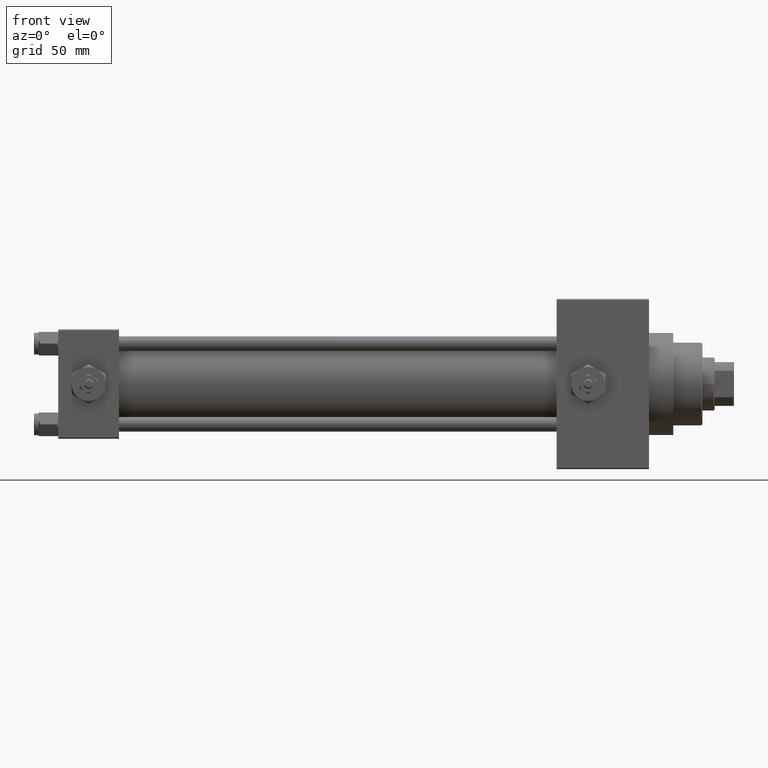
[diagram: clean part render]
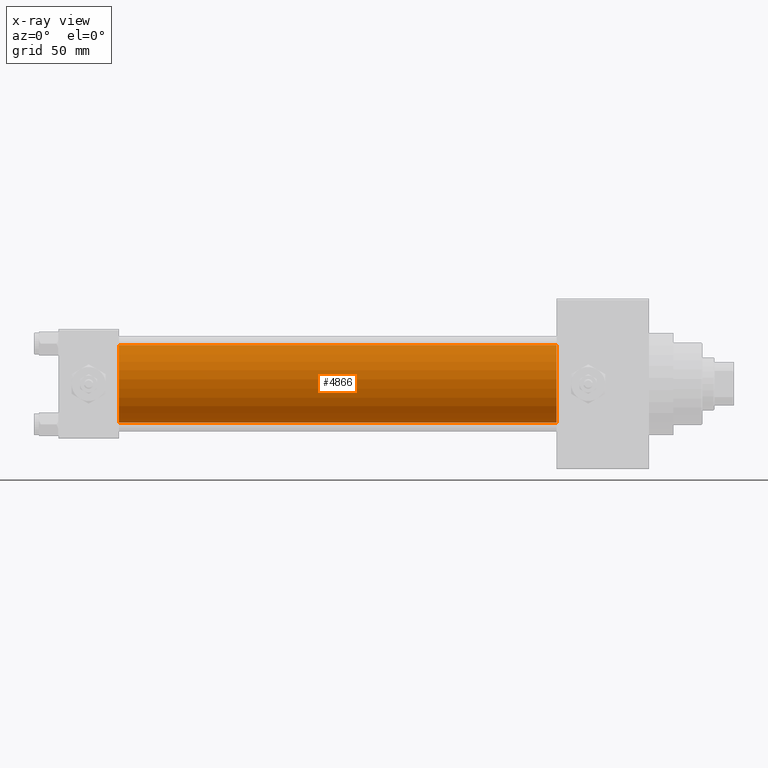
[diagram: x-ray — body ghosted, one internal face saturated and labeled with its STEP entity id]
A machine part, front view, then the same camera in x-ray: the body is ghosted and one INTERNAL B-rep face — a face not visible from any outside direction — is saturated and labeled: STEP entity #4866.
In plain terms, the highlighted cylindrical surface (partial cylindrical patch) has radius 16 mm, axis along (-1, -0, -0).
Its self-contained STEP definition (entity closure, byte-faithful):
#1079 = DIRECTION ( 'NONE',  ( 0.000000000000000000, 0.000000000000000000, 1.000000000000000000 ) ) ;
#2245 = VECTOR ( 'NONE', #17647, 1000.000000000000000 ) ;
#4866 = ADVANCED_FACE ( 'NONE', ( #39772 ), #46492, .F. ) ;
#5376 = VERTEX_POINT ( 'NONE', #23728 ) ;
#5471 = CARTESIAN_POINT ( 'NONE',  ( 205.0000000000000000, -6.426503353294460032E-16, -16.00000000000000000 ) ) ;
#6004 = CARTESIAN_POINT ( 'NONE',  ( 205.0000000000000000, -6.426503353294460032E-16, -16.00000000000000000 ) ) ;
#8059 = VERTEX_POINT ( 'NONE', #36290 ) ;
#8125 = EDGE_CURVE ( 'NONE', #29615, #8059, #28111, .T. ) ;
#8811 = LINE ( 'NONE', #16494, #38651 ) ;
#9791 = CARTESIAN_POINT ( 'NONE',  ( 205.0000000000000000, -2.602085213965210642E-15, 16.00000000000000000 ) ) ;
#11433 = VERTEX_POINT ( 'NONE', #9791 ) ;
#11445 = DIRECTION ( 'NONE',  ( 0.000000000000000000, 0.000000000000000000, -1.000000000000000000 ) ) ;
#15924 = ORIENTED_EDGE ( 'NONE', *, *, #36055, .F. ) ;
#16494 = CARTESIAN_POINT ( 'NONE',  ( 205.0000000000000000, -2.602085213965210642E-15, 16.00000000000000000 ) ) ;
#17248 = ORIENTED_EDGE ( 'NONE', *, *, #48933, .F. ) ;
#17647 = DIRECTION ( 'NONE',  ( -1.000000000000000000, -0.000000000000000000, -0.000000000000000000 ) ) ;
#23208 = ORIENTED_EDGE ( 'NONE', *, *, #39179, .T. ) ;
#23728 = CARTESIAN_POINT ( 'NONE',  ( 25.00000000000000000, -2.602085213965210642E-15, 16.00000000000000000 ) ) ;
#24390 = DIRECTION ( 'NONE',  ( -1.000000000000000000, -0.000000000000000000, -0.000000000000000000 ) ) ;
#24833 = CARTESIAN_POINT ( 'NONE',  ( 25.00000000000000000, -2.602085213965210642E-15, 0.000000000000000000 ) ) ;
#24875 = AXIS2_PLACEMENT_3D ( 'NONE', #24833, #44189, #32523 ) ;
#24877 = CARTESIAN_POINT ( 'NONE',  ( 205.0000000000000000, -2.602085213965210642E-15, 0.000000000000000000 ) ) ;
#25855 = DIRECTION ( 'NONE',  ( 1.000000000000000000, 0.000000000000000000, 0.000000000000000000 ) ) ;
#28111 = LINE ( 'NONE', #6004, #2245 ) ;
#29615 = VERTEX_POINT ( 'NONE', #5471 ) ;
#31654 = DIRECTION ( 'NONE',  ( -1.000000000000000000, -0.000000000000000000, -0.000000000000000000 ) ) ;
#32523 = DIRECTION ( 'NONE',  ( 0.000000000000000000, 0.000000000000000000, -1.000000000000000000 ) ) ;
#33694 = CIRCLE ( 'NONE', #44818, 16.00000000000000000 ) ;
#35843 = ORIENTED_EDGE ( 'NONE', *, *, #8125, .T. ) ;
#36055 = EDGE_CURVE ( 'NONE', #5376, #8059, #48644, .T. ) ;
#36290 = CARTESIAN_POINT ( 'NONE',  ( 25.00000000000000000, -6.426503353294460032E-16, -16.00000000000000000 ) ) ;
#38651 = VECTOR ( 'NONE', #31654, 1000.000000000000000 ) ;
#39179 = EDGE_CURVE ( 'NONE', #11433, #29615, #33694, .T. ) ;
#39321 = EDGE_LOOP ( 'NONE', ( #23208, #35843, #15924, #17248 ) ) ;
#39772 = FACE_OUTER_BOUND ( 'NONE', #39321, .T. ) ;
#41745 = CARTESIAN_POINT ( 'NONE',  ( 205.0000000000000000, -2.602085213965210642E-15, 0.000000000000000000 ) ) ;
#44189 = DIRECTION ( 'NONE',  ( 1.000000000000000000, 0.000000000000000000, 0.000000000000000000 ) ) ;
#44818 = AXIS2_PLACEMENT_3D ( 'NONE', #41745, #25855, #11445 ) ;
#45053 = AXIS2_PLACEMENT_3D ( 'NONE', #24877, #24390, #1079 ) ;
#46492 = CYLINDRICAL_SURFACE ( 'NONE', #45053, 16.00000000000000000 ) ;
#48644 = CIRCLE ( 'NONE', #24875, 16.00000000000000000 ) ;
#48933 = EDGE_CURVE ( 'NONE', #11433, #5376, #8811, .T. ) ;